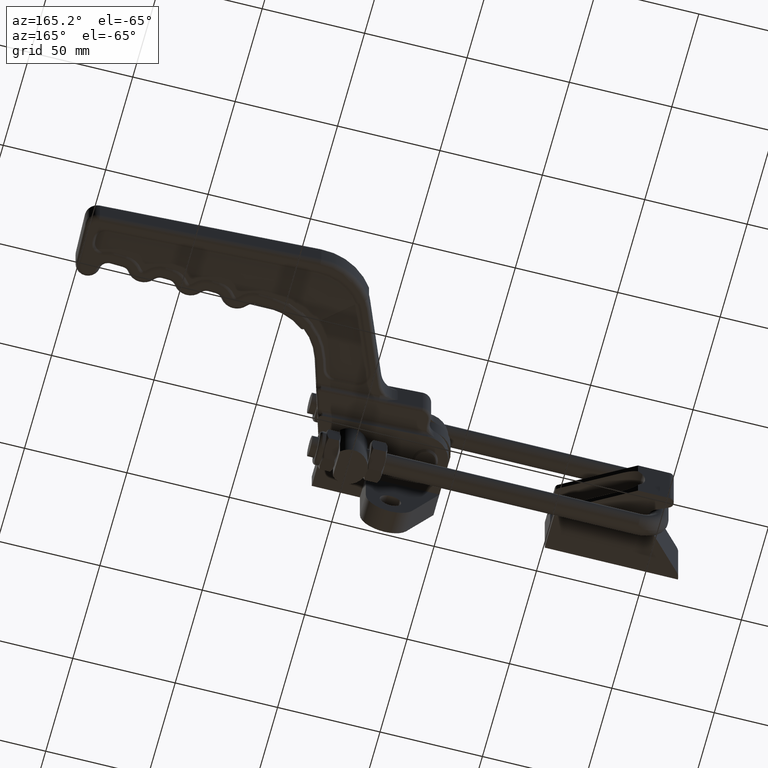
[diagram: clean part render]
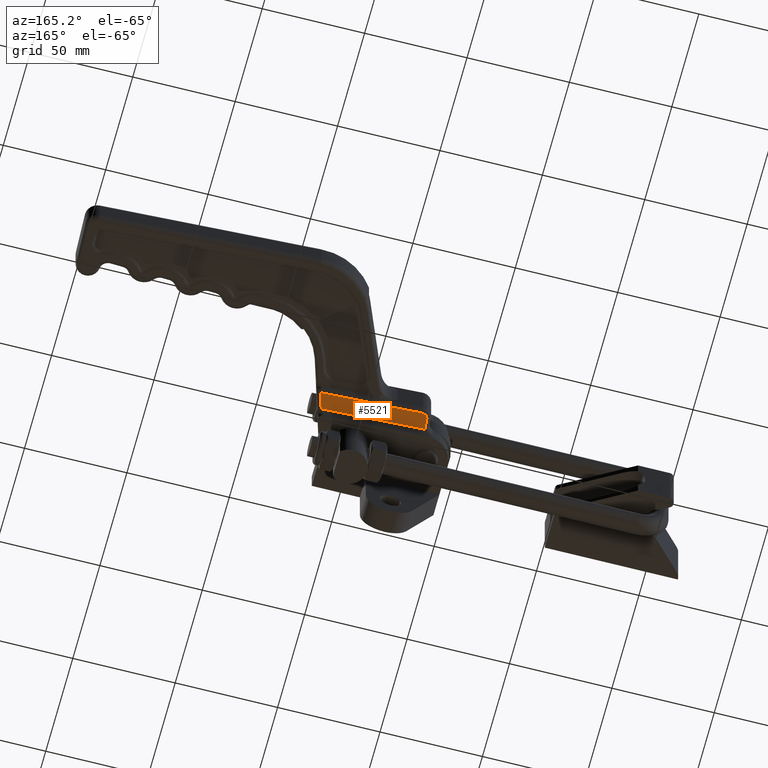
[diagram: same view with one face highlighted and labeled with its STEP entity id]
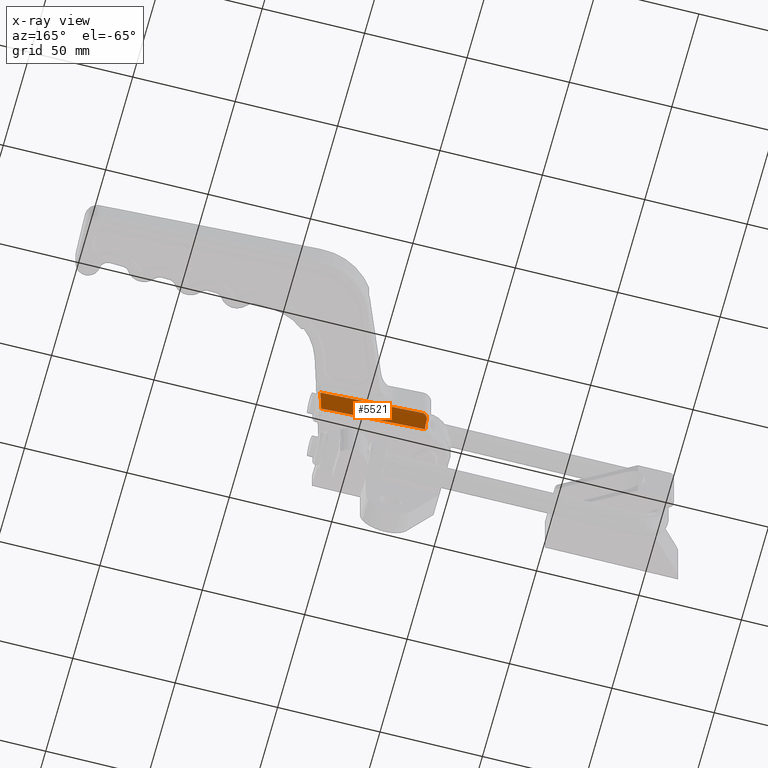
[diagram: x-ray of the same camera — body ghosted, the highlighted face saturated]
A machine part, auxiliary view. The second image highlights one B-rep face of the part: STEP entity #5521.
The next image is the same camera in x-ray: the body ghosted, the highlighted face saturated — about 0% of this face is hidden behind the body in this view.
In plain terms, the highlighted planar face has unit normal (0, 0, -1).
Its self-contained STEP definition (entity closure, byte-faithful):
#65 = CARTESIAN_POINT ( 'NONE',  ( 15.74564653769115800, 43.35145082386389200, -9.999999999999998200 ) ) ;
#579 = ORIENTED_EDGE ( 'NONE', *, *, #17492, .T. ) ;
#582 = CIRCLE ( 'NONE', #17608, 2.999999999999978200 ) ;
#937 = ORIENTED_EDGE ( 'NONE', *, *, #14754, .T. ) ;
#993 = DIRECTION ( 'NONE',  ( -0.9990645734454830500, 0.04324324324325196100, 0.0000000000000000000 ) ) ;
#1472 = CARTESIAN_POINT ( 'NONE',  ( 68.53142448034152800, 49.20131135717920000, -9.999999999999998200 ) ) ;
#1479 = DIRECTION ( 'NONE',  ( -0.3003467043560704700, -0.9538300986981105300, 0.0000000000000000000 ) ) ;
#1716 = AXIS2_PLACEMENT_3D ( 'NONE', #10595, #4090, #12860 ) ;
#2170 = VECTOR ( 'NONE', #13647, 1000.000000000000200 ) ;
#2252 = LINE ( 'NONE', #19378, #13717 ) ;
#2281 = EDGE_CURVE ( 'NONE', #2763, #9395, #18804, .T. ) ;
#2645 = CARTESIAN_POINT ( 'NONE',  ( 39.18346289071166000, 50.47160066124129000, -9.999999999999998200 ) ) ;
#2763 = VERTEX_POINT ( 'NONE', #12316 ) ;
#2772 = ORIENTED_EDGE ( 'NONE', *, *, #13770, .T. ) ;
#4090 = DIRECTION ( 'NONE',  ( 0.0000000000000000000, 0.0000000000000000000, -1.000000000000000000 ) ) ;
#4280 = ORIENTED_EDGE ( 'NONE', *, *, #11863, .T. ) ;
#4469 = LINE ( 'NONE', #5204, #8029 ) ;
#4687 = AXIS2_PLACEMENT_3D ( 'NONE', #18913, #9971, #993 ) ;
#4702 = LINE ( 'NONE', #16683, #2170 ) ;
#5204 = CARTESIAN_POINT ( 'NONE',  ( 68.49192969479314300, 49.07588525910217200, -9.999999999999998200 ) ) ;
#5521 = ADVANCED_FACE ( 'NONE', ( #13781 ), #9865, .T. ) ;
#5542 = ORIENTED_EDGE ( 'NONE', *, *, #15871, .T. ) ;
#6053 = VERTEX_POINT ( 'NONE', #12685 ) ;
#6101 = CARTESIAN_POINT ( 'NONE',  ( 16.22193724300510100, 45.60347089966819600, -9.999999999999998200 ) ) ;
#6142 = VECTOR ( 'NONE', #16446, 1000.000000000000200 ) ;
#6311 = CARTESIAN_POINT ( 'NONE',  ( 66.16535069748094600, 41.68722061770709100, -9.999999999999998200 ) ) ;
#6718 = CARTESIAN_POINT ( 'NONE',  ( 19.46689270036862500, 51.19787182144230500, -9.999999999999998200 ) ) ;
#6746 = CARTESIAN_POINT ( 'NONE',  ( 19.33716297063889300, 48.20067810110588600, -9.999999999999998200 ) ) ;
#7089 = CARTESIAN_POINT ( 'NONE',  ( 36.45044756207831700, 50.46276018447581900, -9.999999999999998200 ) ) ;
#7171 = VECTOR ( 'NONE', #1479, 1000.000000000000100 ) ;
#7274 = VERTEX_POINT ( 'NONE', #9941 ) ;
#7287 = VERTEX_POINT ( 'NONE', #9366 ) ;
#8029 = VECTOR ( 'NONE', #9719, 1000.000000000000200 ) ;
#8306 = DIRECTION ( 'NONE',  ( -0.9990645734454832700, 0.04324324324324366900, 0.0000000000000000000 ) ) ;
#9366 = CARTESIAN_POINT ( 'NONE',  ( 16.33996925030247000, 48.33040783083561100, -9.999999999999998200 ) ) ;
#9395 = VERTEX_POINT ( 'NONE', #65 ) ;
#9719 = DIRECTION ( 'NONE',  ( 0.9990645734454811600, -0.04324324324329431600, -0.0000000000000000000 ) ) ;
#9865 = PLANE ( 'NONE',  #1716 ) ;
#9941 = CARTESIAN_POINT ( 'NONE',  ( 40.54849732107862800, 50.41251687679262300, -9.999999999999998200 ) ) ;
#9971 = DIRECTION ( 'NONE',  ( -0.0000000000000000000, -0.0000000000000000000, 1.000000000000000000 ) ) ;
#10265 = VERTEX_POINT ( 'NONE', #6101 ) ;
#10595 = CARTESIAN_POINT ( 'NONE',  ( 132.7582719161204600, 80.85661037552780800, -9.999999999999998200 ) ) ;
#11166 = LINE ( 'NONE', #6311, #7171 ) ;
#11393 = VERTEX_POINT ( 'NONE', #1472 ) ;
#11863 = EDGE_CURVE ( 'NONE', #11393, #2763, #11166, .T. ) ;
#11895 = DIRECTION ( 'NONE',  ( 0.04324324324324325300, 0.9990645734454833800, 0.0000000000000000000 ) ) ;
#12316 = CARTESIAN_POINT ( 'NONE',  ( 66.00439538371786300, 41.17606460838180000, -9.999999999999998200 ) ) ;
#12518 = ORIENTED_EDGE ( 'NONE', *, *, #2281, .T. ) ;
#12685 = CARTESIAN_POINT ( 'NONE',  ( 36.45044756207831700, 50.46276018447581900, -9.999999999999998200 ) ) ;
#12768 = EDGE_CURVE ( 'NONE', #7287, #15351, #582, .T. ) ;
#12860 = DIRECTION ( 'NONE',  ( -0.9990645734454834900, 0.04324324324324326000, 0.0000000000000000000 ) ) ;
#13124 = CARTESIAN_POINT ( 'NONE',  ( 40.54849732107862800, 50.41251687679262300, -9.999999999999998200 ) ) ;
#13422 = CARTESIAN_POINT ( 'NONE',  ( 130.9191332501201300, 38.36631249201233400, -9.999999999999998200 ) ) ;
#13647 = DIRECTION ( 'NONE',  ( 0.9990645734454811600, -0.04324324324329431600, -0.0000000000000000000 ) ) ;
#13717 = VECTOR ( 'NONE', #11895, 1000.000000000000200 ) ;
#13770 = EDGE_CURVE ( 'NONE', #9395, #10265, #15519, .T. ) ;
#13781 = FACE_OUTER_BOUND ( 'NONE', #18361, .T. ) ;
#14244 = B_SPLINE_CURVE_WITH_KNOTS ( 'NONE', 3,
 ( #7089, #16067, #2645, #13124 ),
 .UNSPECIFIED., .F., .F.,
 ( 4, 4 ),
 ( 0.0000000000000000000, 0.004098599544647425800 ),
 .UNSPECIFIED. ) ;
#14754 = EDGE_CURVE ( 'NONE', #15351, #6053, #4469, .T. ) ;
#15351 = VERTEX_POINT ( 'NONE', #6718 ) ;
#15519 = CIRCLE ( 'NONE', #4687, 7.000000000000051500 ) ;
#15871 = EDGE_CURVE ( 'NONE', #10265, #7287, #2252, .T. ) ;
#16067 = CARTESIAN_POINT ( 'NONE',  ( 37.81620217949411300, 50.40364522764383500, -9.999999999999998200 ) ) ;
#16446 = DIRECTION ( 'NONE',  ( -0.9990645734454833800, 0.04324324324324319700, 0.0000000000000000000 ) ) ;
#16683 = CARTESIAN_POINT ( 'NONE',  ( 68.49742230684906000, 49.20278309814392500, -9.999999999999998200 ) ) ;
#17245 = DIRECTION ( 'NONE',  ( 0.0000000000000000000, 0.0000000000000000000, -1.000000000000000000 ) ) ;
#17492 = EDGE_CURVE ( 'NONE', #7274, #11393, #4702, .T. ) ;
#17608 = AXIS2_PLACEMENT_3D ( 'NONE', #6746, #17245, #8306 ) ;
#17935 = ORIENTED_EDGE ( 'NONE', *, *, #12768, .T. ) ;
#18350 = ORIENTED_EDGE ( 'NONE', *, *, #19336, .T. ) ;
#18361 = EDGE_LOOP ( 'NONE', ( #12518, #2772, #5542, #17935, #937, #18350, #579, #4280 ) ) ;
#18804 = LINE ( 'NONE', #13422, #6142 ) ;
#18913 = CARTESIAN_POINT ( 'NONE',  ( 9.228485228886667000, 45.90617360237089900, -9.999999999999998200 ) ) ;
#19336 = EDGE_CURVE ( 'NONE', #6053, #7274, #14244, .T. ) ;
#19378 = CARTESIAN_POINT ( 'NONE',  ( 16.33996925030246700, 48.33040783083561100, -9.999999999999998200 ) ) ;